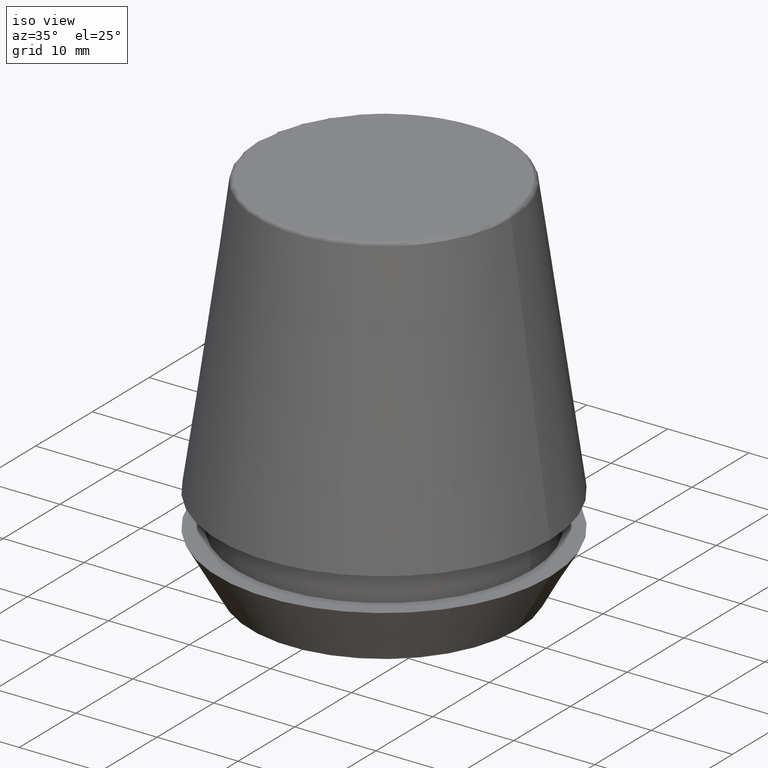
[diagram: clean part render]
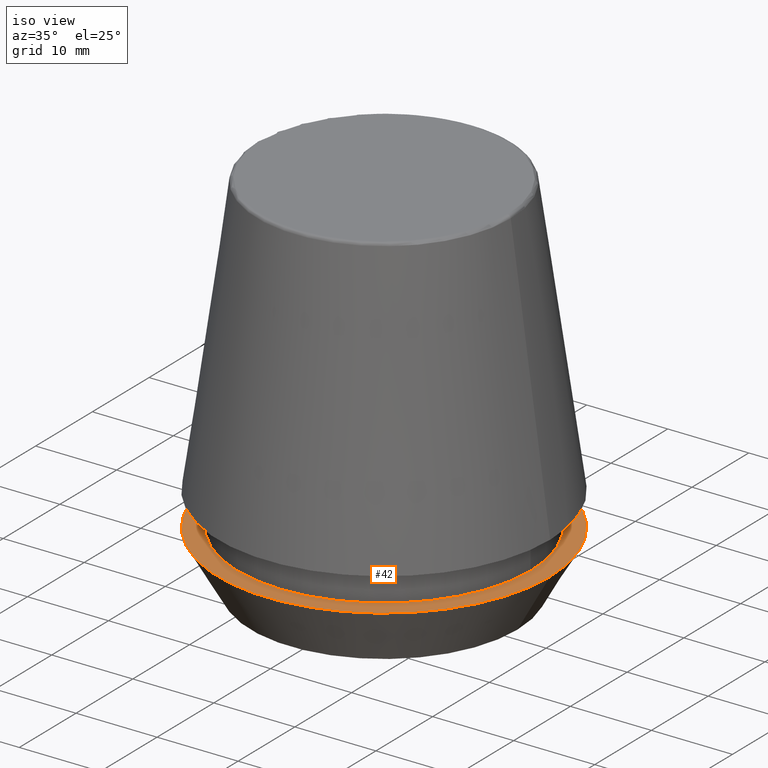
[diagram: same view with one face highlighted and labeled with its STEP entity id]
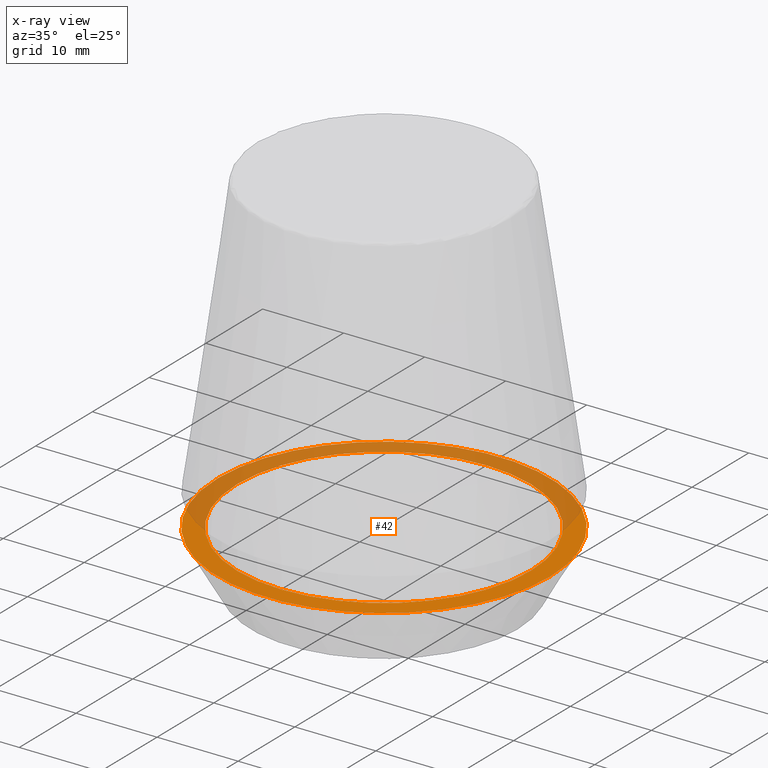
[diagram: x-ray of the same camera — body ghosted, the highlighted face saturated]
A machine part, iso view. The second image highlights one B-rep face of the part: STEP entity #42.
The next image is the same camera in x-ray: the body ghosted, the highlighted face saturated — about 47% of this face is hidden behind the body in this view.
In plain terms, the highlighted planar face has unit normal (0, 0, -1).
Its self-contained STEP definition (entity closure, byte-faithful):
#2 = CIRCLE ( 'NONE', #361, 20.50000000000000000 ) ;
#18 = CARTESIAN_POINT ( 'NONE',  ( 0.0000000000000000000, 0.0000000000000000000, 6.999999999999999100 ) ) ;
#24 = EDGE_LOOP ( 'NONE', ( #363, #298 ) ) ;
#35 = ORIENTED_EDGE ( 'NONE', *, *, #352, .T. ) ;
#39 = ORIENTED_EDGE ( 'NONE', *, *, #375, .T. ) ;
#42 = ADVANCED_FACE ( 'NONE', ( #224, #357 ), #245, .F. ) ;
#44 = DIRECTION ( 'NONE',  ( 1.000000000000000000, 0.0000000000000000000, 0.0000000000000000000 ) ) ;
#50 = AXIS2_PLACEMENT_3D ( 'NONE', #18, #217, #44 ) ;
#62 = DIRECTION ( 'NONE',  ( -0.0000000000000000000, -0.0000000000000000000, 1.000000000000000000 ) ) ;
#63 = EDGE_CURVE ( 'NONE', #247, #373, #208, .T. ) ;
#83 = CIRCLE ( 'NONE', #331, 20.50000000000000000 ) ;
#91 = CARTESIAN_POINT ( 'NONE',  ( -18.10000000000000100, 2.216610706456709600E-015, 6.999999999999999100 ) ) ;
#95 = CARTESIAN_POINT ( 'NONE',  ( 0.0000000000000000000, 0.0000000000000000000, 7.000000000000006200 ) ) ;
#100 = EDGE_LOOP ( 'NONE', ( #35, #39 ) ) ;
#102 = DIRECTION ( 'NONE',  ( 0.0000000000000000000, 0.0000000000000000000, -1.000000000000000000 ) ) ;
#105 = AXIS2_PLACEMENT_3D ( 'NONE', #196, #204, #374 ) ;
#125 = DIRECTION ( 'NONE',  ( 1.000000000000000000, 0.0000000000000000000, 0.0000000000000000000 ) ) ;
#164 = CIRCLE ( 'NONE', #50, 18.10000000000000100 ) ;
#185 = CARTESIAN_POINT ( 'NONE',  ( 18.10000000000000100, 0.0000000000000000000, 6.999999999999999100 ) ) ;
#196 = CARTESIAN_POINT ( 'NONE',  ( 0.0000000000000000000, 0.0000000000000000000, 6.999999999999999100 ) ) ;
#204 = DIRECTION ( 'NONE',  ( -0.0000000000000000000, -0.0000000000000000000, 1.000000000000000000 ) ) ;
#208 = CIRCLE ( 'NONE', #105, 18.10000000000000100 ) ;
#217 = DIRECTION ( 'NONE',  ( -0.0000000000000000000, -0.0000000000000000000, 1.000000000000000000 ) ) ;
#224 = FACE_BOUND ( 'NONE', #24, .T. ) ;
#237 = CARTESIAN_POINT ( 'NONE',  ( 0.0000000000000000000, 0.0000000000000000000, 7.000000000000006200 ) ) ;
#245 = PLANE ( 'NONE',  #273 ) ;
#247 = VERTEX_POINT ( 'NONE', #91 ) ;
#249 = CARTESIAN_POINT ( 'NONE',  ( 20.50000000000000000, 0.0000000000000000000, 7.000000000000006200 ) ) ;
#265 = DIRECTION ( 'NONE',  ( 1.000000000000000000, 0.0000000000000000000, 0.0000000000000000000 ) ) ;
#269 = CARTESIAN_POINT ( 'NONE',  ( 0.0000000000000000000, 20.50000000000000000, 7.000000000000002700 ) ) ;
#271 = VERTEX_POINT ( 'NONE', #287 ) ;
#273 = AXIS2_PLACEMENT_3D ( 'NONE', #269, #102, #299 ) ;
#287 = CARTESIAN_POINT ( 'NONE',  ( -20.50000000000000000, 2.510525938252074100E-015, 7.000000000000006200 ) ) ;
#289 = EDGE_CURVE ( 'NONE', #373, #247, #164, .T. ) ;
#293 = DIRECTION ( 'NONE',  ( -0.0000000000000000000, -0.0000000000000000000, 1.000000000000000000 ) ) ;
#298 = ORIENTED_EDGE ( 'NONE', *, *, #63, .F. ) ;
#299 = DIRECTION ( 'NONE',  ( -1.000000000000000000, 0.0000000000000000000, -0.0000000000000000000 ) ) ;
#304 = VERTEX_POINT ( 'NONE', #249 ) ;
#331 = AXIS2_PLACEMENT_3D ( 'NONE', #237, #62, #265 ) ;
#352 = EDGE_CURVE ( 'NONE', #304, #271, #2, .T. ) ;
#357 = FACE_OUTER_BOUND ( 'NONE', #100, .T. ) ;
#361 = AXIS2_PLACEMENT_3D ( 'NONE', #95, #293, #125 ) ;
#363 = ORIENTED_EDGE ( 'NONE', *, *, #289, .F. ) ;
#373 = VERTEX_POINT ( 'NONE', #185 ) ;
#374 = DIRECTION ( 'NONE',  ( 1.000000000000000000, 0.0000000000000000000, 0.0000000000000000000 ) ) ;
#375 = EDGE_CURVE ( 'NONE', #271, #304, #83, .T. ) ;